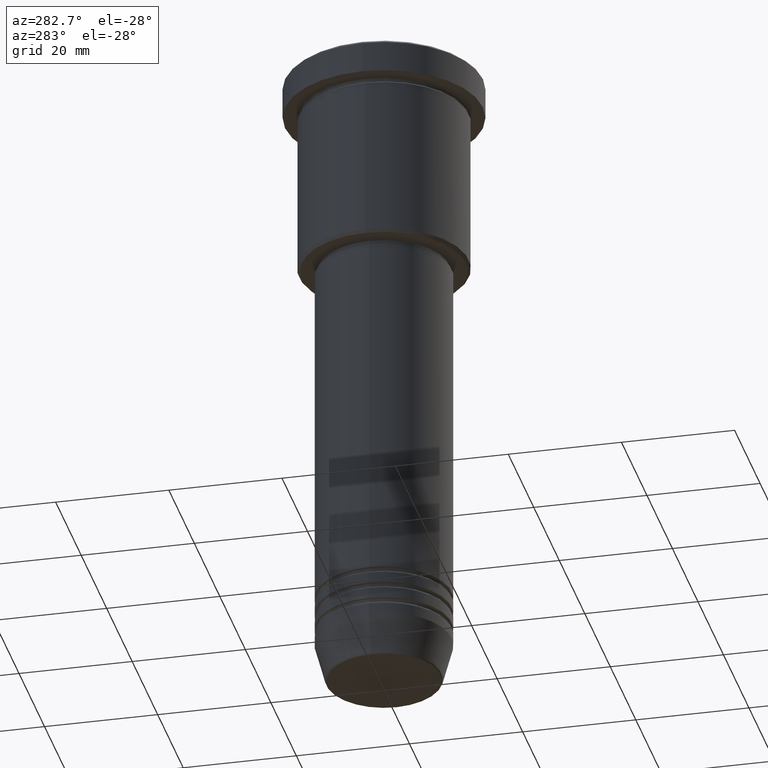
[diagram: clean part render]
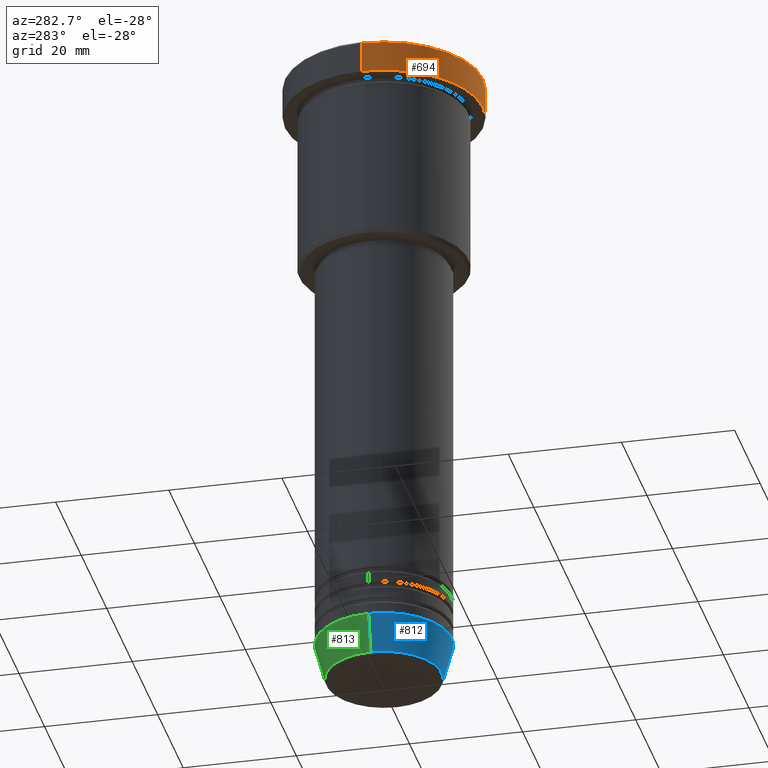
[diagram: same view with three faces highlighted in distinct colors, each labeled with its STEP entity id]
A machine part, auxiliary view with three faces highlighted in distinct colors.
Their STEP definitions:

[orange] entity #694 — the highlighted cylindrical surface (partial cylindrical patch) has radius 17.5 mm, axis along (-0, -0, 1).
#4 = EDGE_CURVE ( 'NONE', #145, #392, #1073, .T. ) ;
#15 = DIRECTION ( 'NONE',  ( 1.000000000000000000, 0.000000000000000000, 0.000000000000000000 ) ) ;
#47 = LINE ( 'NONE', #415, #105 ) ;
#105 = VECTOR ( 'NONE', #671, 1000.000000000000000 ) ;
#145 = VERTEX_POINT ( 'NONE', #193 ) ;
#157 = FACE_OUTER_BOUND ( 'NONE', #1154, .T. ) ;
#175 = AXIS2_PLACEMENT_3D ( 'NONE', #885, #329, #688 ) ;
#193 = CARTESIAN_POINT ( 'NONE',  ( 17.50000000000000000, 0.000000000000000000, -5.999999999999995559 ) ) ;
#226 = ORIENTED_EDGE ( 'NONE', *, *, #975, .T. ) ;
#289 = AXIS2_PLACEMENT_3D ( 'NONE', #459, #749, #15 ) ;
#290 = CARTESIAN_POINT ( 'NONE',  ( -17.50000000000000000, 2.143131898507868248E-15, -0.5000000000000004441 ) ) ;
#301 = DIRECTION ( 'NONE',  ( 1.000000000000000000, 0.000000000000000000, 0.000000000000000000 ) ) ;
#329 = DIRECTION ( 'NONE',  ( -0.000000000000000000, -0.000000000000000000, 1.000000000000000000 ) ) ;
#382 = CIRCLE ( 'NONE', #493, 17.50000000000000000 ) ;
#392 = VERTEX_POINT ( 'NONE', #412 ) ;
#412 = CARTESIAN_POINT ( 'NONE',  ( 17.50000000000000000, 0.000000000000000000, -0.5000000000000004441 ) ) ;
#415 = CARTESIAN_POINT ( 'NONE',  ( -17.50000000000000000, 2.143131898507868248E-15, 0.000000000000000000 ) ) ;
#459 = CARTESIAN_POINT ( 'NONE',  ( 0.000000000000000000, 0.000000000000000000, -0.5000000000000004441 ) ) ;
#479 = CIRCLE ( 'NONE', #289, 17.50000000000000000 ) ;
#493 = AXIS2_PLACEMENT_3D ( 'NONE', #1003, #1117, #301 ) ;
#585 = ORIENTED_EDGE ( 'NONE', *, *, #4, .T. ) ;
#607 = EDGE_CURVE ( 'NONE', #1146, #145, #382, .T. ) ;
#663 = ORIENTED_EDGE ( 'NONE', *, *, #752, .F. ) ;
#671 = DIRECTION ( 'NONE',  ( -0.000000000000000000, -0.000000000000000000, 1.000000000000000000 ) ) ;
#685 = CARTESIAN_POINT ( 'NONE',  ( -17.50000000000000000, 2.143131898507868248E-15, -5.999999999999995559 ) ) ;
#688 = DIRECTION ( 'NONE',  ( 1.000000000000000000, 0.000000000000000000, 0.000000000000000000 ) ) ;
#694 = ADVANCED_FACE ( 'NONE', ( #157 ), #879, .T. ) ;
#749 = DIRECTION ( 'NONE',  ( 0.000000000000000000, 0.000000000000000000, -1.000000000000000000 ) ) ;
#752 = EDGE_CURVE ( 'NONE', #1146, #1019, #47, .T. ) ;
#879 = CYLINDRICAL_SURFACE ( 'NONE', #175, 17.50000000000000000 ) ;
#885 = CARTESIAN_POINT ( 'NONE',  ( 0.000000000000000000, 0.000000000000000000, 0.000000000000000000 ) ) ;
#975 = EDGE_CURVE ( 'NONE', #392, #1019, #479, .T. ) ;
#1003 = CARTESIAN_POINT ( 'NONE',  ( 0.000000000000000000, 0.000000000000000000, -5.999999999999995559 ) ) ;
#1019 = VERTEX_POINT ( 'NONE', #290 ) ;
#1073 = LINE ( 'NONE', #1155, #1083 ) ;
#1083 = VECTOR ( 'NONE', #1181, 1000.000000000000000 ) ;
#1117 = DIRECTION ( 'NONE',  ( -0.000000000000000000, -0.000000000000000000, 1.000000000000000000 ) ) ;
#1140 = ORIENTED_EDGE ( 'NONE', *, *, #607, .T. ) ;
#1146 = VERTEX_POINT ( 'NONE', #685 ) ;
#1154 = EDGE_LOOP ( 'NONE', ( #663, #1140, #585, #226 ) ) ;
#1155 = CARTESIAN_POINT ( 'NONE',  ( 17.50000000000000000, 0.000000000000000000, 0.000000000000000000 ) ) ;
#1181 = DIRECTION ( 'NONE',  ( -0.000000000000000000, -0.000000000000000000, 1.000000000000000000 ) ) ;

[blue] entity #812 — the highlighted conical surface has half-angle 15 deg.
#9 = CONICAL_SURFACE ( 'NONE', #930, 12.00000000000000000, 0.2617993877991500740 ) ;
#13 = EDGE_CURVE ( 'NONE', #413, #1161, #866, .T. ) ;
#57 = EDGE_CURVE ( 'NONE', #1161, #86, #432, .T. ) ;
#65 = AXIS2_PLACEMENT_3D ( 'NONE', #155, #992, #803 ) ;
#86 = VERTEX_POINT ( 'NONE', #650 ) ;
#141 = AXIS2_PLACEMENT_3D ( 'NONE', #1179, #1091, #1011 ) ;
#155 = CARTESIAN_POINT ( 'NONE',  ( 0.000000000000000000, 0.000000000000000000, -115.6294095225512706 ) ) ;
#160 = VECTOR ( 'NONE', #342, 1000.000000000000000 ) ;
#183 = CARTESIAN_POINT ( 'NONE',  ( -12.00000000000000000, 1.469576158976823947E-15, -109.0000000000000142 ) ) ;
#187 = DIRECTION ( 'NONE',  ( -0.2588190451025213501, 3.169619151431772337E-17, 0.9659258262890680902 ) ) ;
#236 = CARTESIAN_POINT ( 'NONE',  ( 0.000000000000000000, 0.000000000000000000, -109.0000000000000142 ) ) ;
#302 = ORIENTED_EDGE ( 'NONE', *, *, #57, .T. ) ;
#338 = CARTESIAN_POINT ( 'NONE',  ( 12.00000000000000000, 0.000000000000000000, -109.0000000000000142 ) ) ;
#342 = DIRECTION ( 'NONE',  ( 0.2588190451025213501, 0.000000000000000000, 0.9659258262890680902 ) ) ;
#413 = VERTEX_POINT ( 'NONE', #1153 ) ;
#432 = LINE ( 'NONE', #338, #160 ) ;
#496 = CIRCLE ( 'NONE', #141, 12.00000000000000000 ) ;
#603 = DIRECTION ( 'NONE',  ( -0.000000000000000000, -0.000000000000000000, 1.000000000000000000 ) ) ;
#650 = CARTESIAN_POINT ( 'NONE',  ( 12.00000000000000000, 0.000000000000000000, -109.0000000000000142 ) ) ;
#674 = CARTESIAN_POINT ( 'NONE',  ( 10.22365507213719305, 0.000000000000000000, -115.6294095225512706 ) ) ;
#697 = ORIENTED_EDGE ( 'NONE', *, *, #821, .F. ) ;
#728 = VECTOR ( 'NONE', #187, 1000.000000000000000 ) ;
#775 = VERTEX_POINT ( 'NONE', #1149 ) ;
#794 = ORIENTED_EDGE ( 'NONE', *, *, #13, .T. ) ;
#803 = DIRECTION ( 'NONE',  ( 1.000000000000000000, 0.000000000000000000, 0.000000000000000000 ) ) ;
#812 = ADVANCED_FACE ( 'NONE', ( #1066 ), #9, .T. ) ;
#821 = EDGE_CURVE ( 'NONE', #413, #775, #895, .T. ) ;
#866 = CIRCLE ( 'NONE', #65, 10.22365507213719305 ) ;
#871 = ORIENTED_EDGE ( 'NONE', *, *, #954, .F. ) ;
#882 = EDGE_LOOP ( 'NONE', ( #697, #794, #302, #871 ) ) ;
#895 = LINE ( 'NONE', #183, #728 ) ;
#930 = AXIS2_PLACEMENT_3D ( 'NONE', #236, #603, #974 ) ;
#954 = EDGE_CURVE ( 'NONE', #775, #86, #496, .T. ) ;
#974 = DIRECTION ( 'NONE',  ( 1.000000000000000000, 0.000000000000000000, 0.000000000000000000 ) ) ;
#992 = DIRECTION ( 'NONE',  ( -0.000000000000000000, -0.000000000000000000, 1.000000000000000000 ) ) ;
#1011 = DIRECTION ( 'NONE',  ( 1.000000000000000000, 0.000000000000000000, 0.000000000000000000 ) ) ;
#1066 = FACE_OUTER_BOUND ( 'NONE', #882, .T. ) ;
#1091 = DIRECTION ( 'NONE',  ( -0.000000000000000000, -0.000000000000000000, 1.000000000000000000 ) ) ;
#1149 = CARTESIAN_POINT ( 'NONE',  ( -12.00000000000000000, 1.469576158976823947E-15, -109.0000000000000142 ) ) ;
#1153 = CARTESIAN_POINT ( 'NONE',  ( -10.22365507213719305, 1.360806402472382744E-15, -115.6294095225512706 ) ) ;
#1161 = VERTEX_POINT ( 'NONE', #674 ) ;
#1179 = CARTESIAN_POINT ( 'NONE',  ( 0.000000000000000000, 0.000000000000000000, -109.0000000000000142 ) ) ;

[green] entity #813 — the highlighted conical surface has half-angle 15 deg.
#18 = EDGE_CURVE ( 'NONE', #1161, #413, #1175, .T. ) ;
#22 = ORIENTED_EDGE ( 'NONE', *, *, #57, .F. ) ;
#57 = EDGE_CURVE ( 'NONE', #1161, #86, #432, .T. ) ;
#86 = VERTEX_POINT ( 'NONE', #650 ) ;
#142 = AXIS2_PLACEMENT_3D ( 'NONE', #441, #332, #1089 ) ;
#160 = VECTOR ( 'NONE', #342, 1000.000000000000000 ) ;
#168 = CARTESIAN_POINT ( 'NONE',  ( 0.000000000000000000, 0.000000000000000000, -109.0000000000000142 ) ) ;
#183 = CARTESIAN_POINT ( 'NONE',  ( -12.00000000000000000, 1.469576158976823947E-15, -109.0000000000000142 ) ) ;
#187 = DIRECTION ( 'NONE',  ( -0.2588190451025213501, 3.169619151431772337E-17, 0.9659258262890680902 ) ) ;
#262 = ORIENTED_EDGE ( 'NONE', *, *, #18, .T. ) ;
#275 = DIRECTION ( 'NONE',  ( 1.000000000000000000, 0.000000000000000000, 0.000000000000000000 ) ) ;
#288 = CIRCLE ( 'NONE', #1059, 12.00000000000000000 ) ;
#332 = DIRECTION ( 'NONE',  ( -0.000000000000000000, -0.000000000000000000, 1.000000000000000000 ) ) ;
#338 = CARTESIAN_POINT ( 'NONE',  ( 12.00000000000000000, 0.000000000000000000, -109.0000000000000142 ) ) ;
#342 = DIRECTION ( 'NONE',  ( 0.2588190451025213501, 0.000000000000000000, 0.9659258262890680902 ) ) ;
#413 = VERTEX_POINT ( 'NONE', #1153 ) ;
#432 = LINE ( 'NONE', #338, #160 ) ;
#441 = CARTESIAN_POINT ( 'NONE',  ( 0.000000000000000000, 0.000000000000000000, -115.6294095225512706 ) ) ;
#527 = EDGE_CURVE ( 'NONE', #86, #775, #288, .T. ) ;
#560 = ORIENTED_EDGE ( 'NONE', *, *, #821, .T. ) ;
#574 = CONICAL_SURFACE ( 'NONE', #666, 12.00000000000000000, 0.2617993877991500740 ) ;
#626 = FACE_OUTER_BOUND ( 'NONE', #999, .T. ) ;
#650 = CARTESIAN_POINT ( 'NONE',  ( 12.00000000000000000, 0.000000000000000000, -109.0000000000000142 ) ) ;
#660 = DIRECTION ( 'NONE',  ( -0.000000000000000000, -0.000000000000000000, 1.000000000000000000 ) ) ;
#666 = AXIS2_PLACEMENT_3D ( 'NONE', #168, #1101, #275 ) ;
#674 = CARTESIAN_POINT ( 'NONE',  ( 10.22365507213719305, 0.000000000000000000, -115.6294095225512706 ) ) ;
#728 = VECTOR ( 'NONE', #187, 1000.000000000000000 ) ;
#775 = VERTEX_POINT ( 'NONE', #1149 ) ;
#813 = ADVANCED_FACE ( 'NONE', ( #626 ), #574, .T. ) ;
#821 = EDGE_CURVE ( 'NONE', #413, #775, #895, .T. ) ;
#829 = ORIENTED_EDGE ( 'NONE', *, *, #527, .F. ) ;
#840 = DIRECTION ( 'NONE',  ( 1.000000000000000000, 0.000000000000000000, 0.000000000000000000 ) ) ;
#895 = LINE ( 'NONE', #183, #728 ) ;
#999 = EDGE_LOOP ( 'NONE', ( #262, #560, #829, #22 ) ) ;
#1008 = CARTESIAN_POINT ( 'NONE',  ( 0.000000000000000000, 0.000000000000000000, -109.0000000000000142 ) ) ;
#1059 = AXIS2_PLACEMENT_3D ( 'NONE', #1008, #660, #840 ) ;
#1089 = DIRECTION ( 'NONE',  ( 1.000000000000000000, 0.000000000000000000, 0.000000000000000000 ) ) ;
#1101 = DIRECTION ( 'NONE',  ( -0.000000000000000000, -0.000000000000000000, 1.000000000000000000 ) ) ;
#1149 = CARTESIAN_POINT ( 'NONE',  ( -12.00000000000000000, 1.469576158976823947E-15, -109.0000000000000142 ) ) ;
#1153 = CARTESIAN_POINT ( 'NONE',  ( -10.22365507213719305, 1.360806402472382744E-15, -115.6294095225512706 ) ) ;
#1161 = VERTEX_POINT ( 'NONE', #674 ) ;
#1175 = CIRCLE ( 'NONE', #142, 10.22365507213719305 ) ;